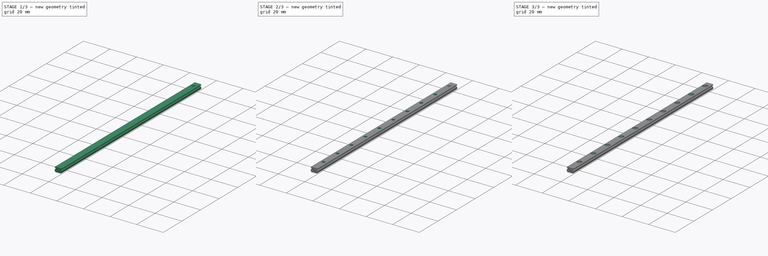
[diagram: build sequence overview — one tinted view per stage of 3, left to right]
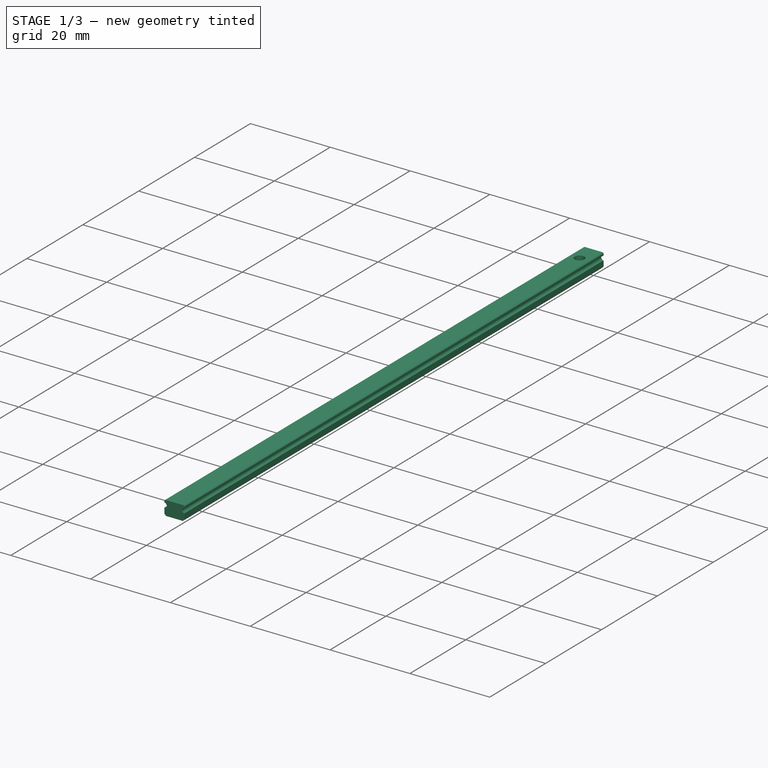
[diagram: stage 1 of 3 — iso view after this stage's code; geometry added in this stage tinted green]
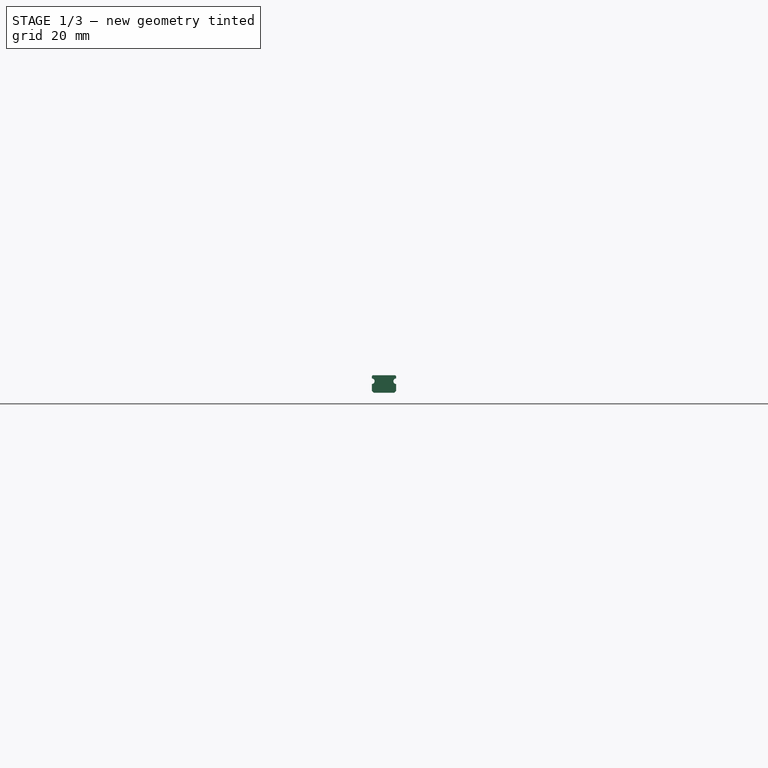
[diagram: stage 1 of 3 — front view after this stage's code; geometry added in this stage tinted green]
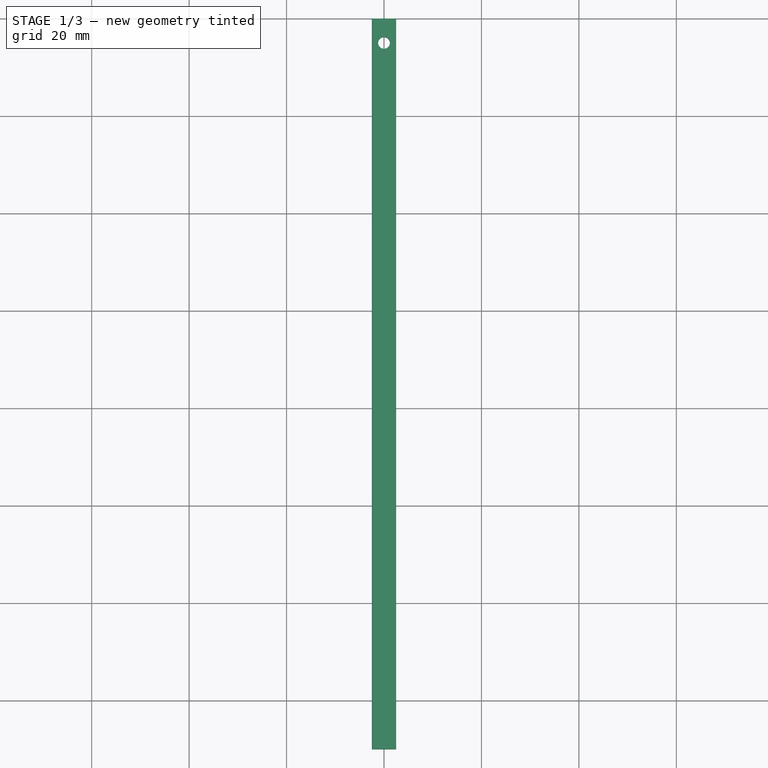
[diagram: stage 1 of 3 — top view after this stage's code; geometry added in this stage tinted green]
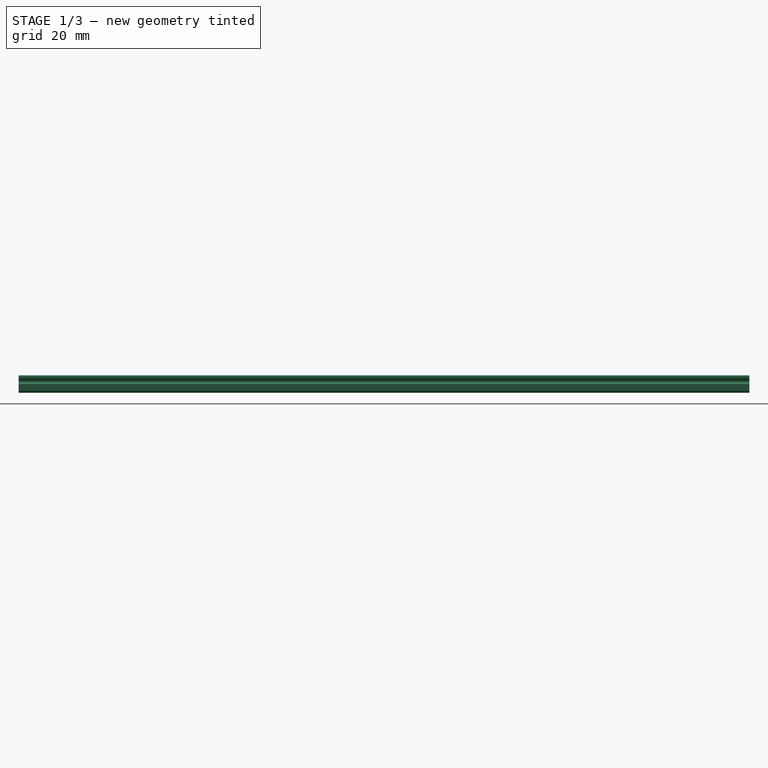
[diagram: stage 1 of 3 — right view after this stage's code; geometry added in this stage tinted green]
FCSTD DOCUMENT  (FreeCAD 0.20R)
Label: LinearSlide-MGNx-XX-Rail
Comment: <email>
License: Creative Commons Attribution-ShareAlike
LicenseURL: http://creativecommons.org/licenses/by-sa/4.0/
objects: Sketcher::SketchObject×3, PartDesign::Pocket×2, PartDesign::LinearPattern×2, Spreadsheet::Sheet×1, PartDesign::Pad×1, PartDesign::Body×1
note: 12 computed .brp shape members not serialized (recipe doc carries the construction recipe); baked Part::Feature solids carry a one-line shape summary decoded from their .brp

FEATURE [Spreadsheet::Sheet] Spreadsheet  label="Set MGN Rail Parameters"
  cells = A1=Taken from the datasheet at http://motioncontrolsystems.hiwin.us/Asset/MG-Series-Catalog.pdf; A2=Inspired by the work of Adrian McEwen; A3=To create a standard rail, copy the values ​​from the corresponding column and paste them into the "PartValue" column, and set the "Rl" value to the desired length for the rail with its corresponding unit (mm, cm, m, etc.). .) For example, for a 50cm rail we can set "Rl" as the value "500mm" or "50cm" or "0.5m"; A4=Set Rail Length; B4=Longitud del Rail; C4=Rl; D4(railLength)==150mm; C5=RAIL DIMENSIONS; E5=STANDARD RAILS; A6=Description; B6=Description Spanish; C6=Name; D6=PartValue; A7=Model name; B7=Nombre del modelo; C7=Mn; D7(modelName)=MGN5; E7=MGN5; F7=MGN7; G7=MGN9; H7=MGN12; I7=MGN15; A8=Rail width; B8=Anchura del rail; C8=Wr; D8(railWidth)==5mm; E8==5mm; F8==7mm; G8==9mm; H8==12mm; I8==15mm; A9=Rail height; B9=Altura del rail; C9=Hr; D9(railHeight)==3.6mm; E9==3.6mm; F9==4.8mm; G9==6.5mm; H9==8mm; I9==10mm; A10=Mounting Hole Countersinks; B10=Avellanado Taladros Montaje; C10=D; D10(D)==3.6mm; E10==3.6mm; F10==4.2mm; G10==6mm; H10==6mm; I10==6mm; A11=Countersink height; B11=Altura Avellanado; C11=h; D11(countersinkHeight)==0.8mm; E11==0.8mm; F11==2.3mm; G11==3.5mm; H11==4.5mm; I11==4.5mm; A12=Mounting Hole; B12=Taladros de Montaje; C12=d; D12(mountinHoleDiameter)==2.4mm; E12==2.4mm; F12==2.4mm; G12==3.5mm; H12==3.5mm; I12==3.5mm; A13=Distance between any two holes; B13=Distancia Entre Taladros; C13=P; D13(distanceBetweenHole)==15mm; E13==15mm; F13==15mm; G13==20mm; H13==25mm; I13==40mm; A14=Distance from the center of the first hole to the edge; B14=Distancia entre el borde y el primer taladro; C14=E; D14(distanceFromEdge)==5mm; E14==5mm; F14==5mm; G14==7.5mm; H14==10mm; I14==15mm; A15=Bearing Gap Diameter; B15=Diametro Endidura Rodamientos; C15=Bg; D15(bearingGap)==1.14mm; E15==1.14mm; F15==1.59mm; G15==1.84mm; H15==2.5mm; I15==2.73mm; A16=Bearing Gap Height; B16=Altura de la endidura del rodamiento; C16=Bgh; D16(bearingGapHeight)==2.37mm; E16==2.37mm; F16==3.19mm; G16==4.5mm; H16==5.5mm; I16==6.995mm; A17=Upper chanfer; B17=Chaflan superior; C17=uCh; D17(upperChanfer)==0.2mm; E17==0.2mm; F17==0.2mm; G17==0.4mm; H17==0.5mm; I17==0.8mm; A18=Lower chanfer; B18=Chaflan inferior; C18=lCh; D18(lowerChanfer)==0.4mm; E18==0.4mm; F18==0.2mm; G18==0.4mm; H18==0.5mm; I18==0.8mm; A19=The following two parameters are not used yet; A20=Notch Diameter; B20=Diametro Muesca; C20=nd; D20(notchDiameter)==0.6mm; G20==0.8mm; H20==0.6mm; I20==1.04mm; A21=Notch Position; B21=Posicion de la muesca; C21=np; D21(notchPosition)==4.5mm; G21==2.7mm; H21==4.5mm; I21==5.5mm; A22=DO NOT MODIFY FOLLOWING VALUES, ARE CALCULATED AUTOMATICALLY; A23=Total number of drills; B23=Numero Total de Taladros; C23(drillHoles)==trunc((D4 - D15) / D13)
FEATURE [Sketcher::SketchObject] Sketch
  FullyConstrained = true
  MapMode = 5
  Placement = pos=(0,0,0) rot=(1,0,0;1.5708rad)
  Support = -> [XZ_Plane]
  expr: Constraints[19] = <<Set MGN Rail Parameters>>.railWidth
  expr: Constraints[20] = <<Set MGN Rail Parameters>>.railWidth
  expr: Constraints[21] = <<Set MGN Rail Parameters>>.bearingGap / 2
  expr: Constraints[26] = <<Set MGN Rail Parameters>>.railHeight
  expr: Constraints[28] = <<Set MGN Rail Parameters>>.lowerChanfer
  expr: Constraints[29] = <<Set MGN Rail Parameters>>.lowerChanfer
  expr: Constraints[30] = <<Set MGN Rail Parameters>>.bearingGapHeight
  expr: Constraints[31] = <<Set MGN Rail Parameters>>.upperChanfer
  expr: Constraints[32] = <<Set MGN Rail Parameters>>.upperChanfer
  sketch-geometry (12):
    g0: LineSegment StartX=-2.3 StartY=3.6 StartZ=0 EndX=2.3 EndY=3.6 EndZ=0
    g1: LineSegment StartX=2.3 StartY=3.6 StartZ=0 EndX=2.5 EndY=3.4 EndZ=0
    g2: LineSegment StartX=2.5 StartY=3.4 StartZ=0 EndX=2.5 EndY=2.94 EndZ=0
    g3: LineSegment StartX=2.5 StartY=0.4 StartZ=0 EndX=2.1 EndY=0 EndZ=0
    g4: LineSegment StartX=2.1 StartY=0 StartZ=0 EndX=-2.1 EndY=0 EndZ=0
    g5: LineSegment StartX=-2.1 StartY=0 StartZ=0 EndX=-2.5 EndY=0.4 EndZ=0
    g6: LineSegment StartX=-2.5 StartY=0.4 StartZ=0 EndX=-2.5 EndY=1.8 EndZ=0
    g7: LineSegment StartX=-2.5 StartY=3.4 StartZ=0 EndX=-2.3 EndY=3.6 EndZ=0
    g8: ArcOfCircle CenterX=-2.5 CenterY=2.37 CenterZ=0 NormalX=0 NormalY=0 NormalZ=1 AngleXU=0 Radius=0.57 StartAngle=4.71239 EndAngle=7.85398
    g9: ArcOfCircle CenterX=2.5 CenterY=2.37 CenterZ=0 NormalX=0 NormalY=0 NormalZ=1 AngleXU=0 Radius=0.57 StartAngle=1.5708 EndAngle=4.71239
    g10: LineSegment StartX=-2.5 StartY=2.94 StartZ=0 EndX=-2.5 EndY=3.4 EndZ=0
    g11: LineSegment StartX=2.5 StartY=1.8 StartZ=0 EndX=2.5 EndY=0.4 EndZ=0
  constraints (33):
    c: Coincident(g0,g1)
    c: Coincident(g1,g2)
    c: Coincident(g11,g3)
    c: Coincident(g3,g4)
    c: Coincident(g4,g5)
    c: Coincident(g5,g6)
    c: Coincident(g10,g7)
    c: Coincident(g7,g0)
    c: Symmetric(g4,g3,g-2)
    c: Symmetric(g5,g11,g-2)
    c: Symmetric(g10,g1,g-2)
    c: Symmetric(g0,g0,g-2)
    c: PointOnObject(g4,g-1)
    c: PointOnObject(g8,g6)
    c: Symmetric(g9,g8,g-2)
    c: Coincident(g6,g8)
    c: Coincident(g10,g8)
    c: Coincident(g2,g9)
    c: Coincident(g11,g9)
    c: DistanceX(g5,g3) = 5
    c: DistanceX(g7,g1) = 5
    c: Radius(g9) = 0.57
    c: Vertical(g6)
    c: Vertical(g10)
    c: Vertical(g11)
    c: Vertical(g2)
    c: DistanceY(g4,g0) = 3.6
    c: Equal(g9,g8)
    c: DistanceX(g5,g4) = 0.4
    c: DistanceY(g4,g5) = 0.4
    c: DistanceY(g-1,g8) = 2.37
    c: DistanceX(g7,g0) = 0.2
    c: DistanceY(g7,g0) = 0.2
FEATURE [PartDesign::Pad] Pad
  Direction = (0,-1,-2e-16)
  Length = 150
  Length2 = 10
  Placement = pos=(0,0,0) rot=(1,0,0;1.5708rad)
  Profile = -> Sketch
  ReferenceAxis = -> Sketch [N_Axis]
  Type = 0
  expr: Length = <<Set MGN Rail Parameters>>.railLength
FEATURE [Sketcher::SketchObject] Sketch001
  FullyConstrained = true
  MapMode = 5
  Placement = pos=(0,-8e-16,3.6) rot=(0,0,1;3.14159rad)
  Support = -> [Pad]
  expr: Constraints[1] = <<Set MGN Rail Parameters>>.mountinHoleDiameter
  expr: Constraints[2] = <<Set MGN Rail Parameters>>.distanceFromEdge
  sketch-geometry (1):
    g0: Circle CenterX=0 CenterY=5 CenterZ=0 NormalX=0 NormalY=0 NormalZ=1 AngleXU=0 Radius=1.2
  constraints (3):
    c: Tangent(g0,g-2) = -1.5708
    c: Diameter(g0) = 2.4
    c: DistanceY(g-1,g0) = 5
FEATURE [PartDesign::Pocket] Pocket
  BaseFeature = -> Pad
  Direction = (0,2e-16,-1)
  Length = 3.6
  Length2 = 5
  Placement = pos=(0,0,0) rot=(1,0,0;1.5708rad)
  Profile = -> Sketch001
  ReferenceAxis = -> Sketch001 [N_Axis]
  Type = 0
  expr: Length = <<Set MGN Rail Parameters>>.railHeight
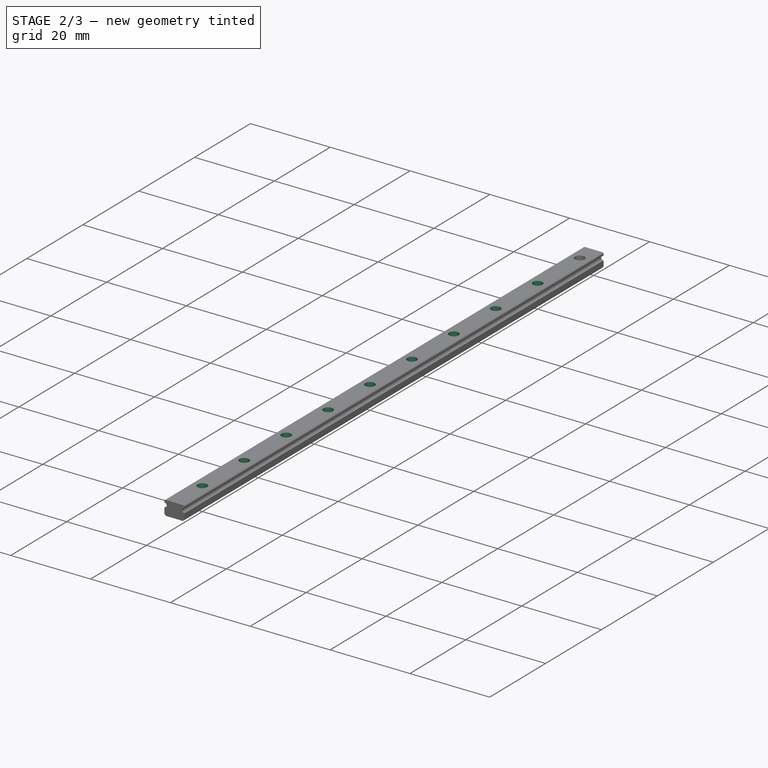
[diagram: stage 2 of 3 — iso view after this stage's code; geometry added in this stage tinted green]
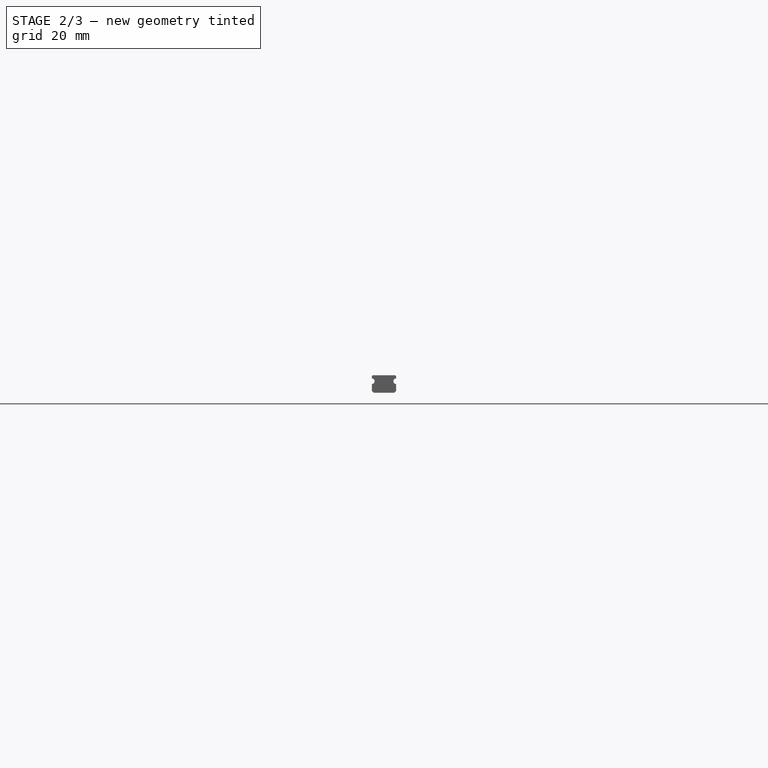
[diagram: stage 2 of 3 — front view after this stage's code; geometry added in this stage tinted green]
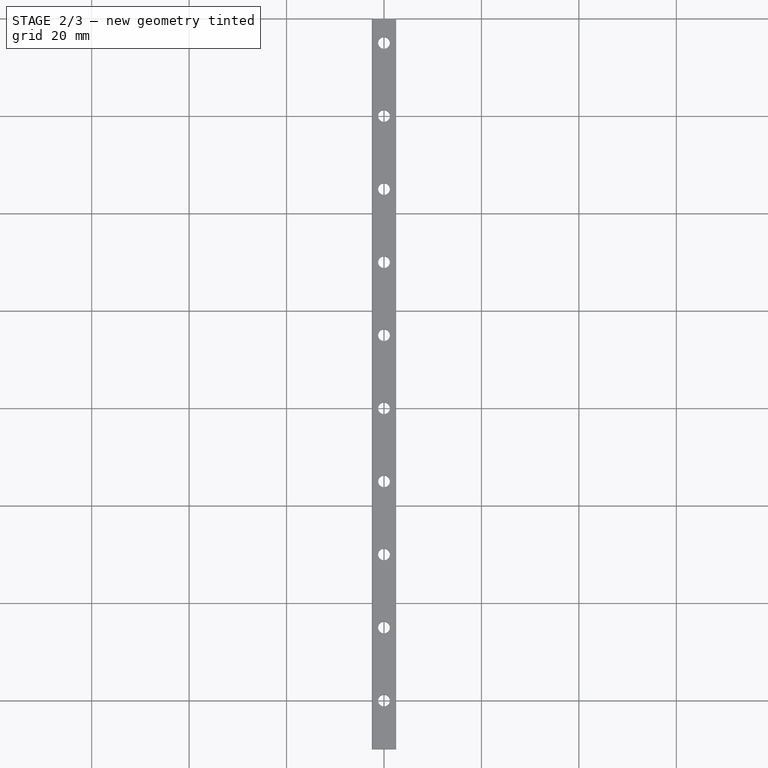
[diagram: stage 2 of 3 — top view after this stage's code; geometry added in this stage tinted green]
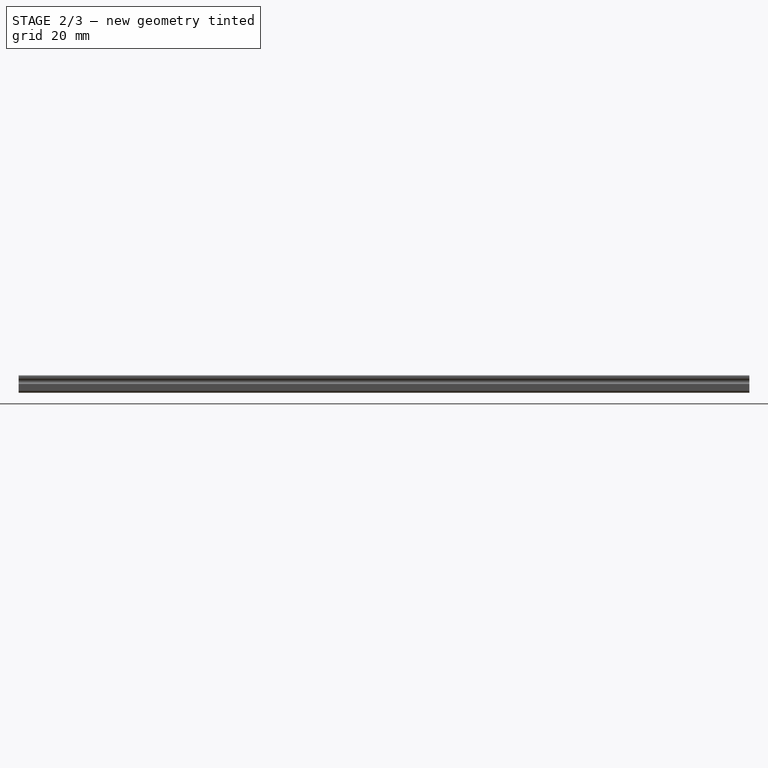
[diagram: stage 2 of 3 — right view after this stage's code; geometry added in this stage tinted green]
FEATURE [PartDesign::LinearPattern] LinearPattern
  BaseFeature = -> Pocket
  Direction = -> Y_Axis
  Length = 135
  Occurrences = 10
  Originals = -> [Pocket]
  Placement = pos=(0,0,0) rot=(1,0,0;1.5708rad)
  Reversed = true
  expr: Length = <<Set MGN Rail Parameters>>.distanceBetweenHole * <<Set MGN Rail Parameters>>.drillHoles
  expr: Occurrences = <<Set MGN Rail Parameters>>.drillHoles + 1
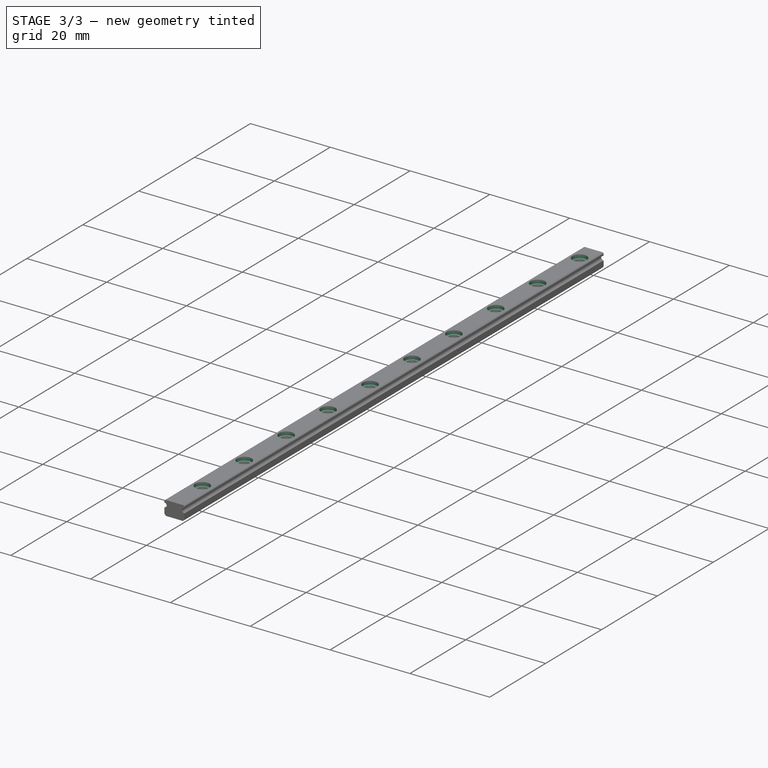
[diagram: stage 3 of 3 — iso view after this stage's code; geometry added in this stage tinted green]
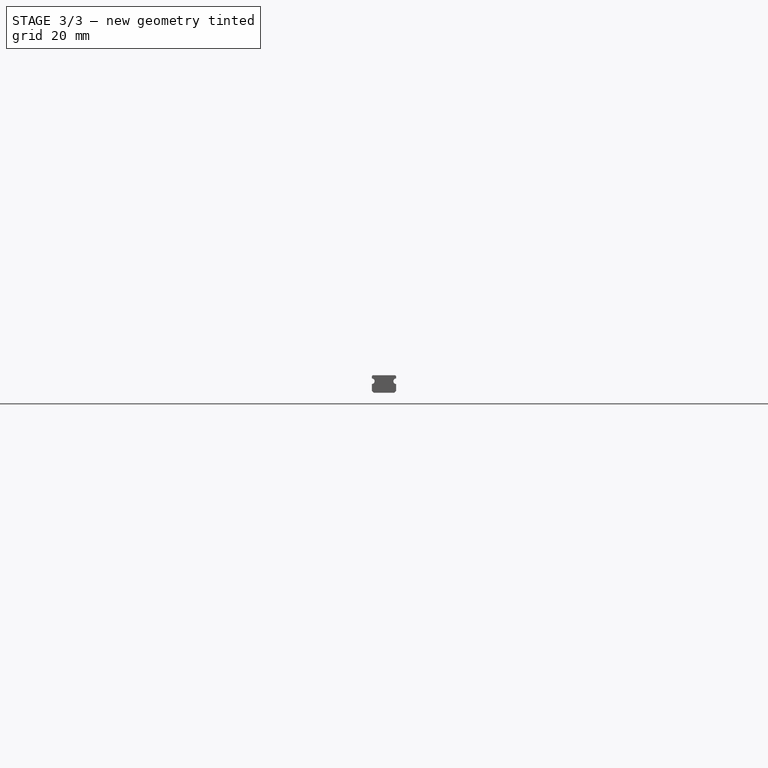
[diagram: stage 3 of 3 — front view after this stage's code; geometry added in this stage tinted green]
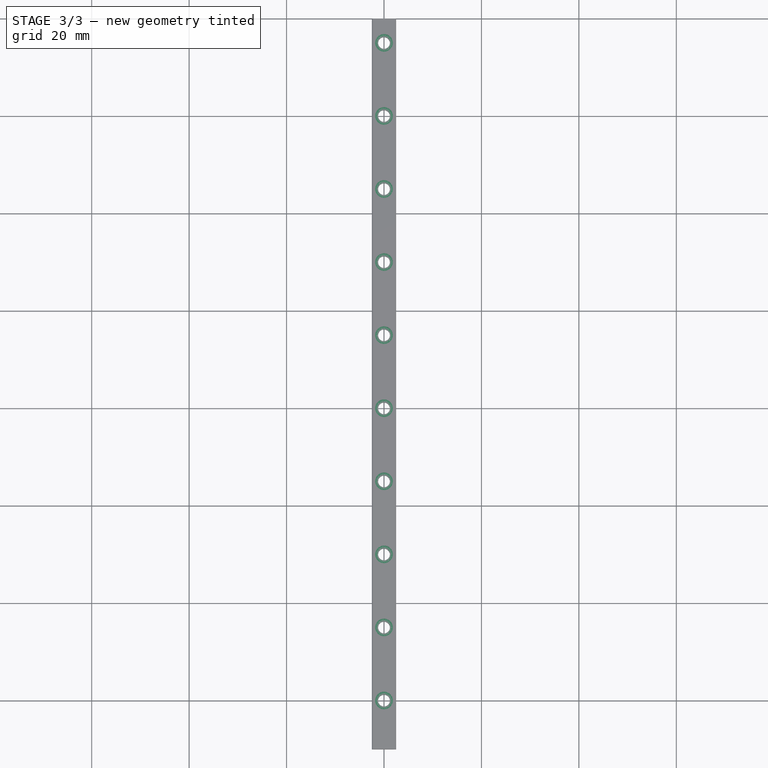
[diagram: stage 3 of 3 — top view after this stage's code; geometry added in this stage tinted green]
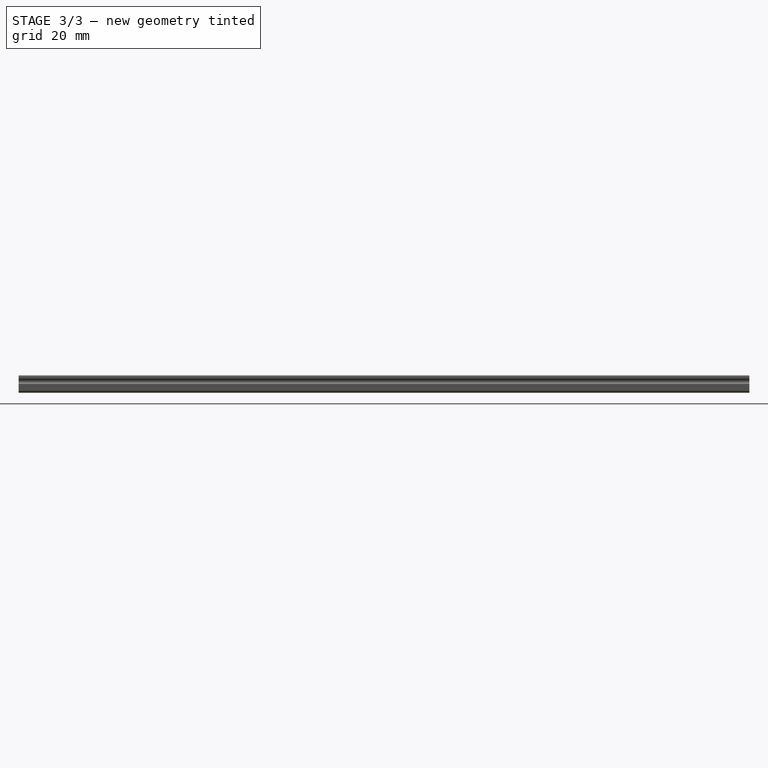
[diagram: stage 3 of 3 — right view after this stage's code; geometry added in this stage tinted green]
FEATURE [Sketcher::SketchObject] Sketch002
  FullyConstrained = true
  MapMode = 5
  Placement = pos=(0,-8e-16,3.6) rot=(0,0,1;3.14159rad)
  Support = -> [LinearPattern]
  expr: Constraints[0] = <<Set MGN Rail Parameters>>.D
  expr: Constraints[1] = <<Set MGN Rail Parameters>>.distanceFromEdge
  sketch-geometry (1):
    g0: Circle CenterX=0 CenterY=5 CenterZ=0 NormalX=0 NormalY=0 NormalZ=1 AngleXU=0 Radius=1.8
  constraints (3):
    c: Diameter(g0) = 3.6
    c: DistanceY(g-1,g0) = 5
    c: PointOnObject(g0,g-2)
FEATURE [PartDesign::Pocket] Pocket001
  BaseFeature = -> LinearPattern
  Direction = (0,2e-16,-1)
  Length = 0.8
  Length2 = 5
  Placement = pos=(0,0,0) rot=(1,0,0;1.5708rad)
  Profile = -> Sketch002
  ReferenceAxis = -> Sketch002 [N_Axis]
  Type = 0
  expr: Length = <<Set MGN Rail Parameters>>.countersinkHeight
FEATURE [PartDesign::LinearPattern] LinearPattern001
  BaseFeature = -> Pocket001
  Direction = -> Y_Axis
  Length = 135
  Occurrences = 10
  Originals = -> [Pocket001]
  Placement = pos=(0,0,0) rot=(1,0,0;1.5708rad)
  Reversed = true
  expr: Length = <<Set MGN Rail Parameters>>.distanceBetweenHole * <<Set MGN Rail Parameters>>.drillHoles
  expr: Occurrences = <<Set MGN Rail Parameters>>.drillHoles + 1
FEATURE [PartDesign::Body] Body  label="MGN5 150.0 mm"
  Group = -> [Sketch,Pad,Sketch001,Pocket,LinearPattern,Sketch002,Pocket001,LinearPattern001]
  Origin = -> Origin
  Tip = -> LinearPattern001
  expr: Label = <<Set MGN Rail Parameters>>.modelName + << %s>> % <<Set MGN Rail Parameters>>.railLength
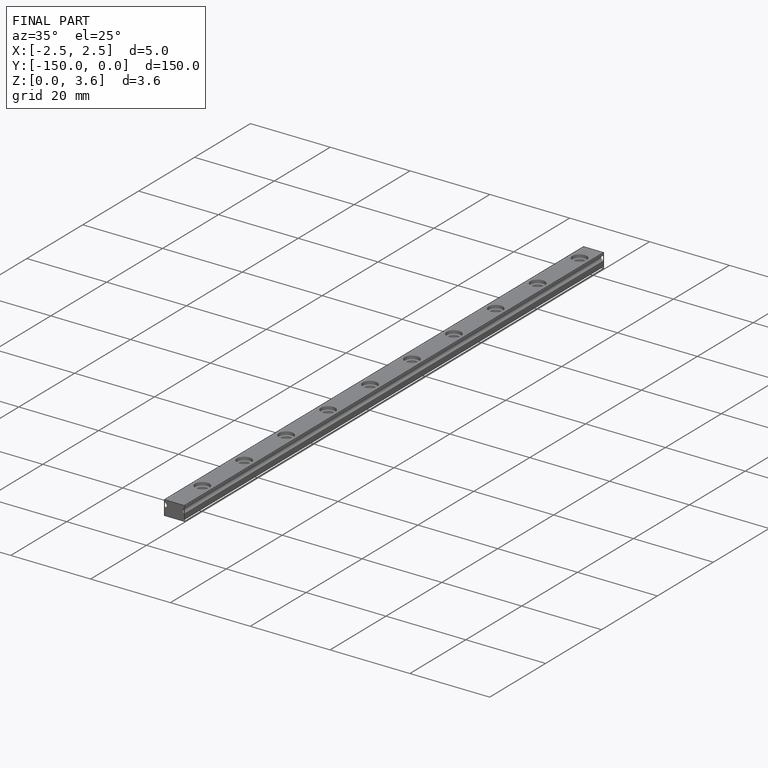
[diagram: finished part — iso view with bounding-box wireframe]
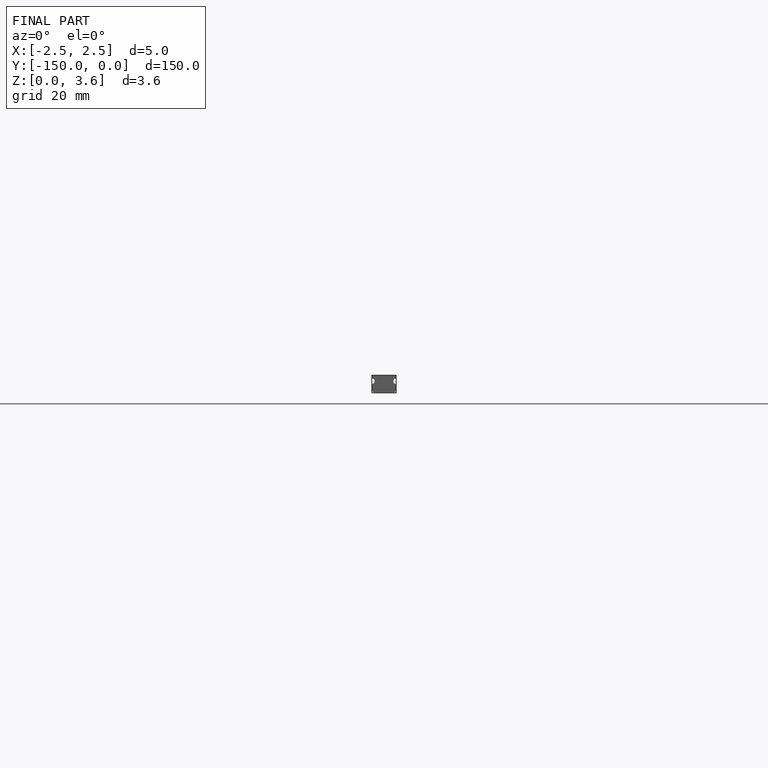
[diagram: finished part — front view with bounding-box wireframe]
